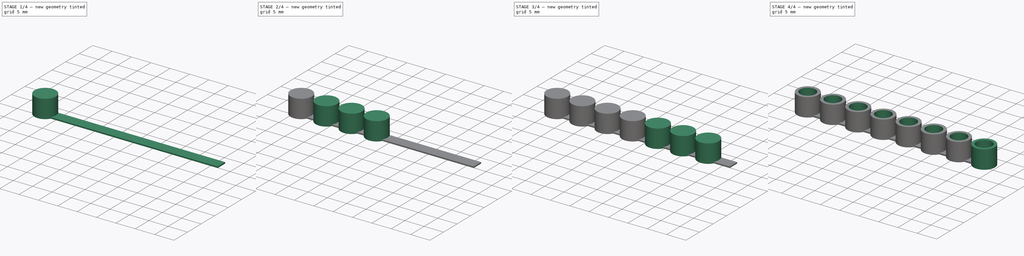
[diagram: build sequence overview — one tinted view per stage of 4, left to right]
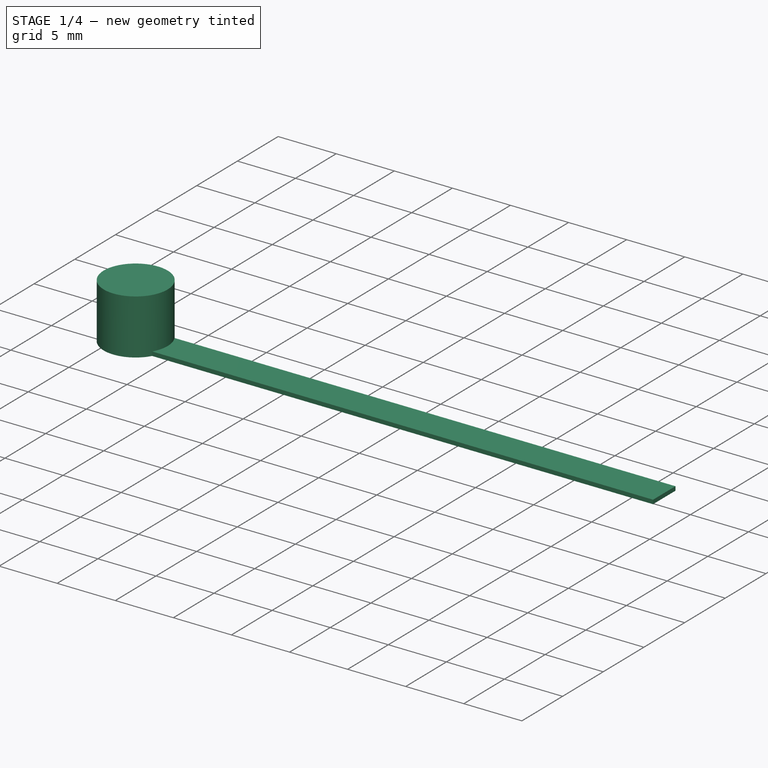
[diagram: stage 1 of 4 — iso view after this stage's code; geometry added in this stage tinted green]
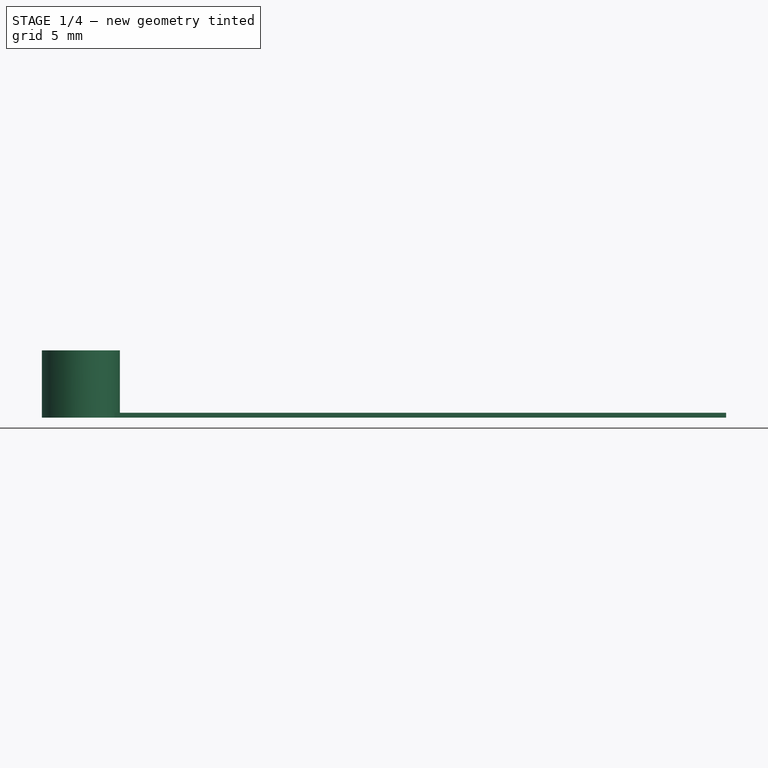
[diagram: stage 1 of 4 — front view after this stage's code; geometry added in this stage tinted green]
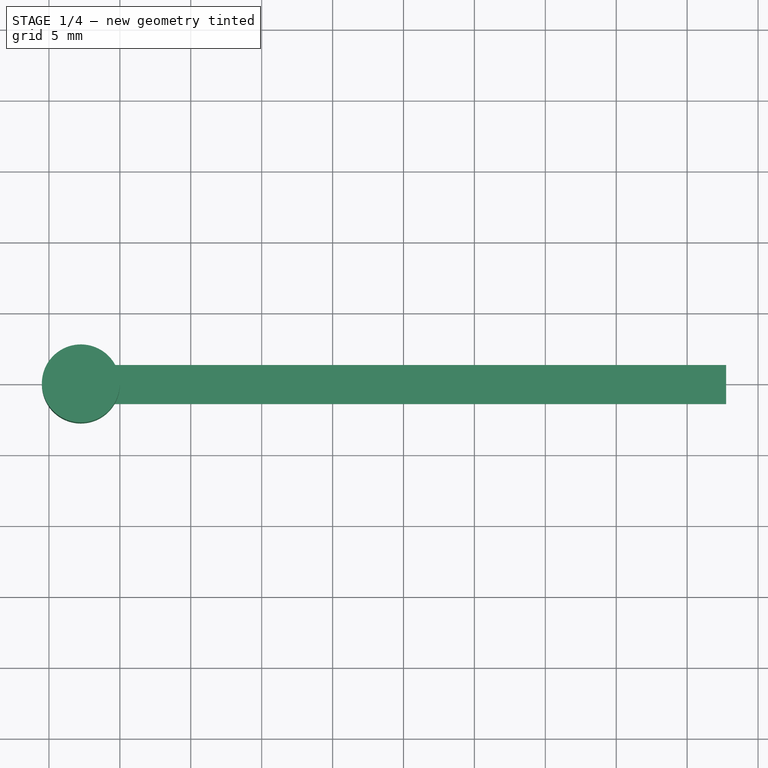
[diagram: stage 1 of 4 — top view after this stage's code; geometry added in this stage tinted green]
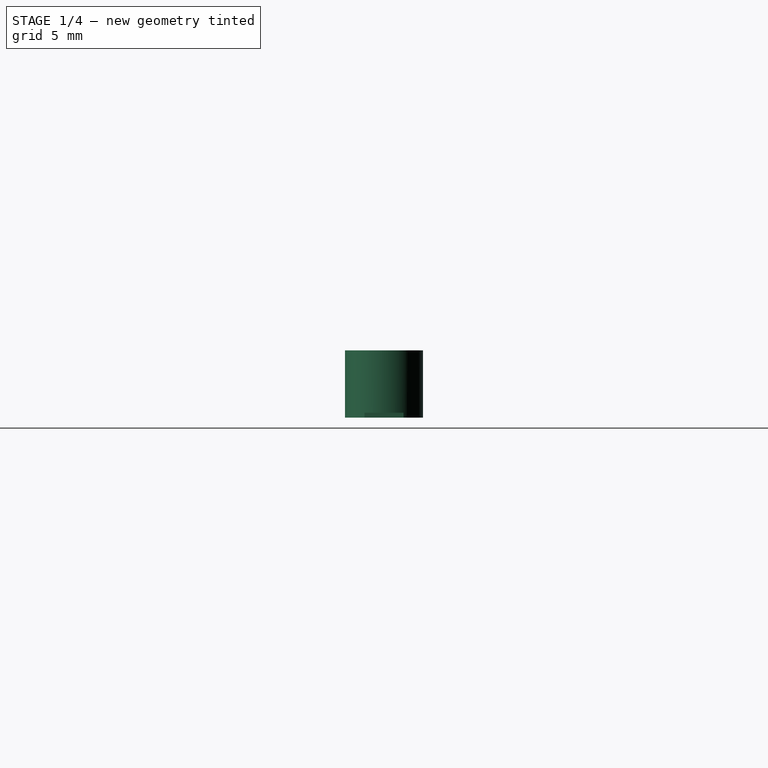
[diagram: stage 1 of 4 — right view after this stage's code; geometry added in this stage tinted green]
FCSTD DOCUMENT  (FreeCAD 0.14R2756 (Git))
Label: lcd_spacers_v0.4
License: CC-BY 3.0
LicenseURL: http://creativecommons.org/licenses/by/3.0/
objects: Sketcher::SketchObject×10, PartDesign::Pad×9, PartDesign::Pocket×1
note: 30 computed .brp shape members not serialized (recipe doc carries the construction recipe); baked Part::Feature solids carry a one-line shape summary decoded from their .brp

FEATURE [Sketcher::SketchObject] Sketch
  sketch-geometry (4):
    g0: LineSegment StartX=-22.75 StartY=1.375 StartZ=0 EndX=22.75 EndY=1.375 EndZ=0
    g1: LineSegment StartX=22.75 StartY=1.375 StartZ=0 EndX=22.75 EndY=-1.375 EndZ=0
    g2: LineSegment StartX=22.75 StartY=-1.375 StartZ=0 EndX=-22.75 EndY=-1.375 EndZ=0
    g3: LineSegment StartX=-22.75 StartY=-1.375 StartZ=0 EndX=-22.75 EndY=1.375 EndZ=0
  constraints (12):
    c: Coincident(g0,g1)
    c: Coincident(g1,g2)
    c: Coincident(g2,g3)
    c: Coincident(g3,g0)
    c: Horizontal(g0)
    c: Horizontal(g2)
    c: Vertical(g1)
    c: Vertical(g3)
    c: DistanceY(g3) = 2.75
    c: DistanceX(g0) = 45.5
    c: Symmetric(g2,g0,g-1)
    c: Symmetric(g0,g0,g-2)
FEATURE [PartDesign::Pad] Pad
  Length = 0.35
  Length2 = 100
  Sketch = -> Sketch
  Type = 0
FEATURE [Sketcher::SketchObject] Sketch001
  ExternalGeometry = -> [Pad]
  Placement = pos=(0,0,0) rot=(1,0,0;3.14159rad)
  Support = -> Pad [Face5]
  sketch-geometry (1):
    g0: Circle CenterX=-22.75 CenterY=0 CenterZ=0 NormalX=0 NormalY=0 NormalZ=1 Radius=2.75
  constraints (3):
    c: Radius(g0) = 2.75
    c: PointOnObject(g0,g-3)
    c: PointOnObject(g0,g-1)
FEATURE [PartDesign::Pad] Pad001
  Length = 4.75
  Length2 = 100
  Reversed = true
  Sketch = -> Sketch001
  Type = 0
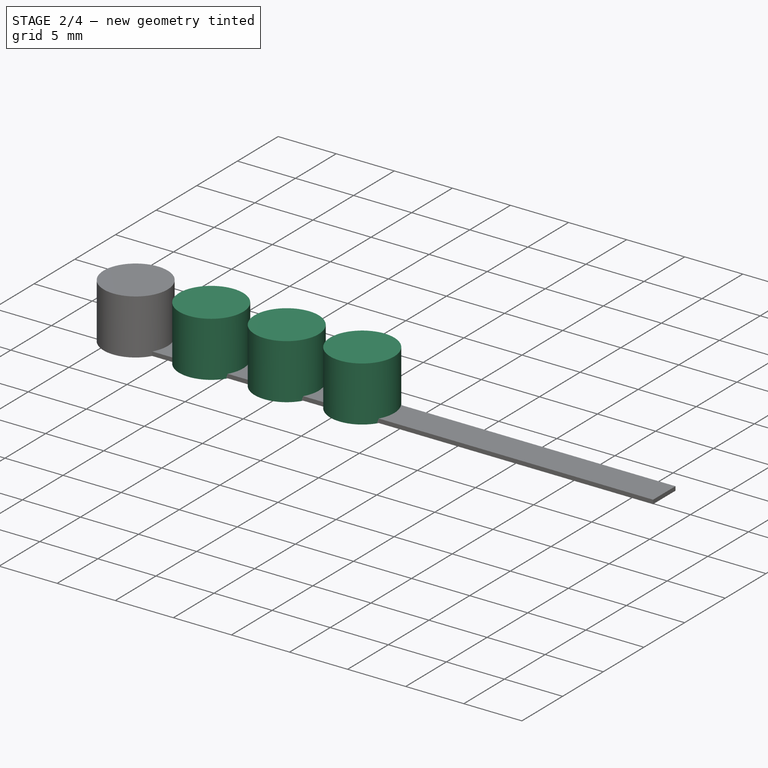
[diagram: stage 2 of 4 — iso view after this stage's code; geometry added in this stage tinted green]
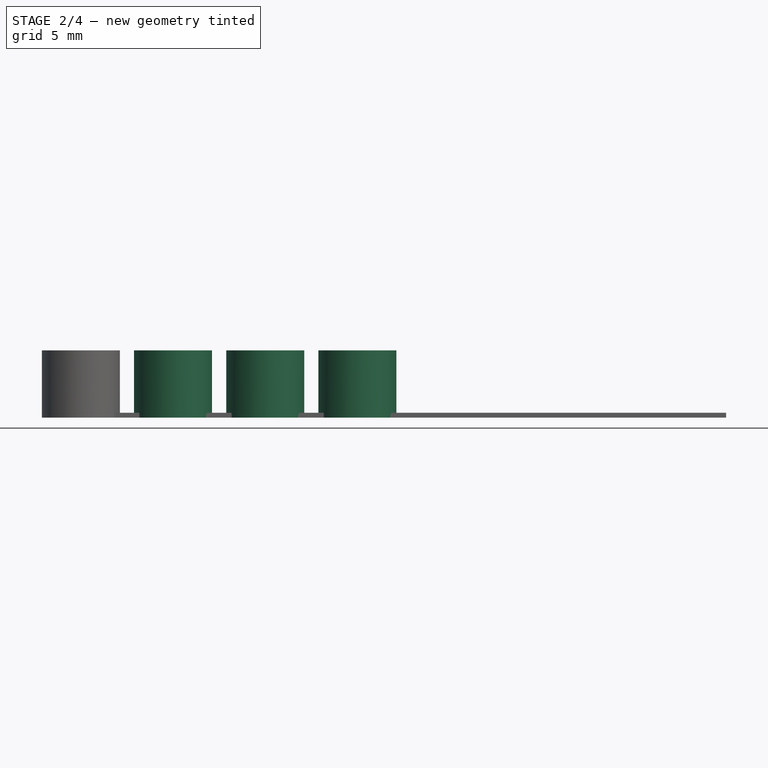
[diagram: stage 2 of 4 — front view after this stage's code; geometry added in this stage tinted green]
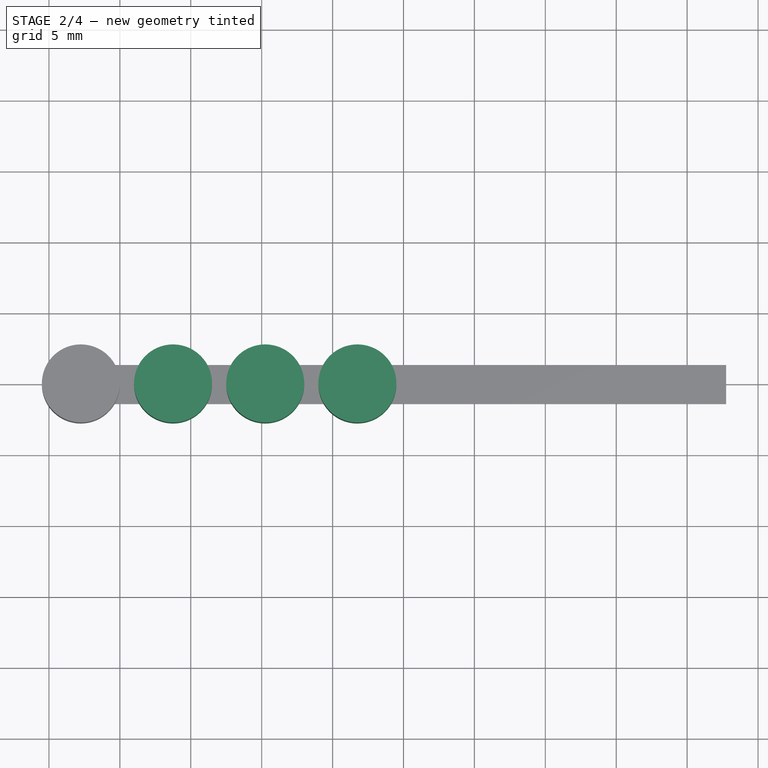
[diagram: stage 2 of 4 — top view after this stage's code; geometry added in this stage tinted green]
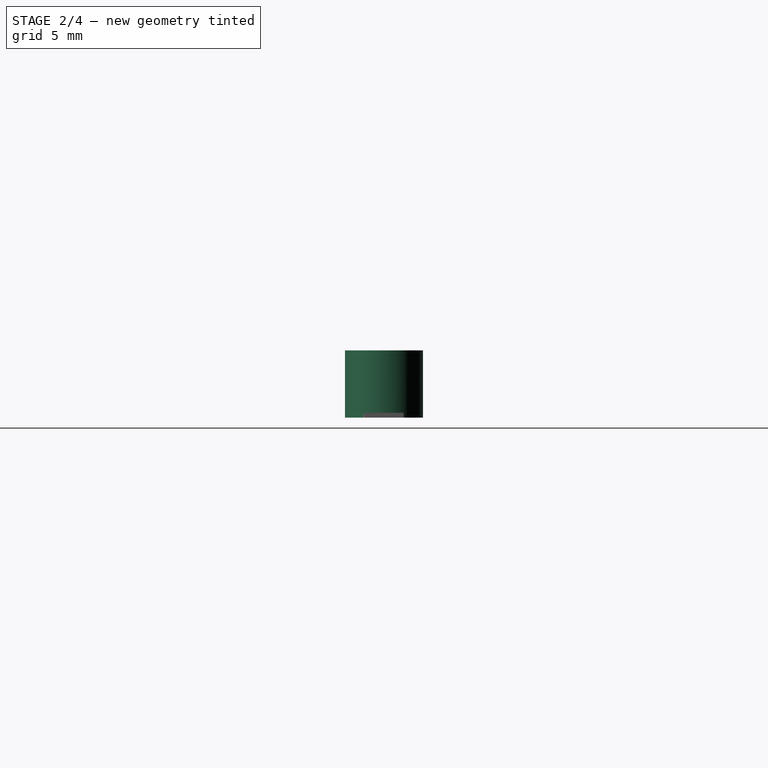
[diagram: stage 2 of 4 — right view after this stage's code; geometry added in this stage tinted green]
FEATURE [Sketcher::SketchObject] Sketch002
  ExternalGeometry = -> [Pad001]
  Placement = pos=(0,0,0) rot=(1,0,0;3.14159rad)
  Support = -> Pad001 [Face4]
  sketch-geometry (1):
    g0: Circle CenterX=-16.25 CenterY=0 CenterZ=0 NormalX=0 NormalY=0 NormalZ=1 Radius=2.75
  constraints (3):
    c: Distance(g0,g-3) = 6.5
    c: Radius(g0) = 2.75
    c: PointOnObject(g0,g-1)
FEATURE [PartDesign::Pad] Pad002
  Length = 4.75
  Length2 = 100
  Reversed = true
  Sketch = -> Sketch002
  Type = 0
FEATURE [Sketcher::SketchObject] Sketch003
  ExternalGeometry = -> [Pad002]
  Placement = pos=(0,0,0) rot=(1,0,0;3.14159rad)
  Support = -> Pad002 [Face4]
  sketch-geometry (1):
    g0: Circle CenterX=-9.75 CenterY=0 CenterZ=0 NormalX=0 NormalY=0 NormalZ=1 Radius=2.75
  constraints (3):
    c: PointOnObject(g0,g-1)
    c: Distance(g0,g-3) = 6.5
    c: Radius(g0) = 2.75
FEATURE [PartDesign::Pad] Pad003
  Length = 4.75
  Length2 = 100
  Reversed = true
  Sketch = -> Sketch003
  Type = 0
FEATURE [Sketcher::SketchObject] Sketch004
  ExternalGeometry = -> [Pad003]
  Placement = pos=(0,0,0) rot=(1,0,0;3.14159rad)
  Support = -> Pad003 [Face4]
  sketch-geometry (1):
    g0: Circle CenterX=-3.25 CenterY=0 CenterZ=0 NormalX=0 NormalY=0 NormalZ=1 Radius=2.75
  constraints (3):
    c: Radius(g0) = 2.75
    c: PointOnObject(g0,g-1)
    c: Distance(g0,g-3) = 6.5
FEATURE [PartDesign::Pad] Pad004
  Length = 4.75
  Length2 = 100
  Reversed = true
  Sketch = -> Sketch004
  Type = 0
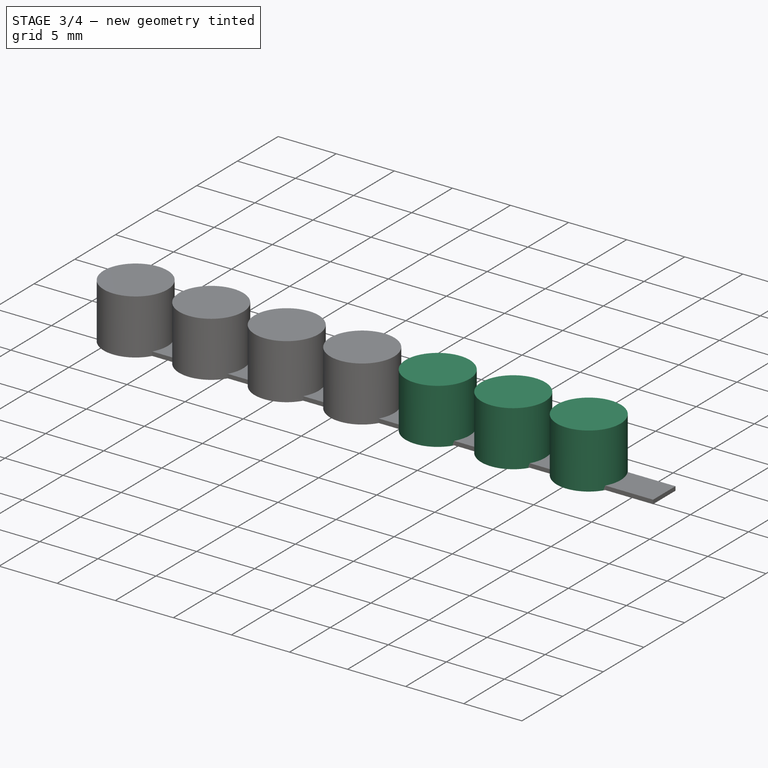
[diagram: stage 3 of 4 — iso view after this stage's code; geometry added in this stage tinted green]
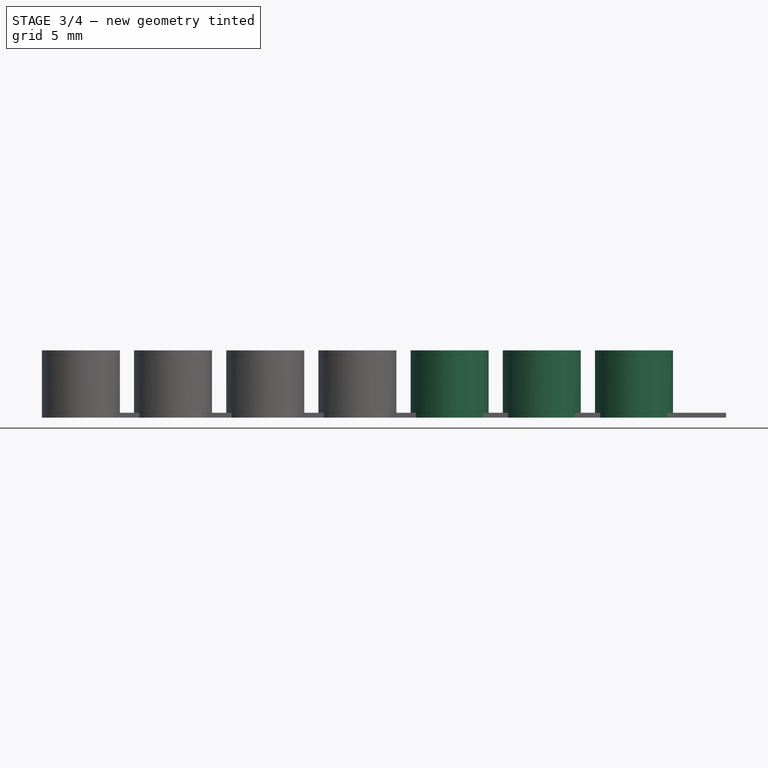
[diagram: stage 3 of 4 — front view after this stage's code; geometry added in this stage tinted green]
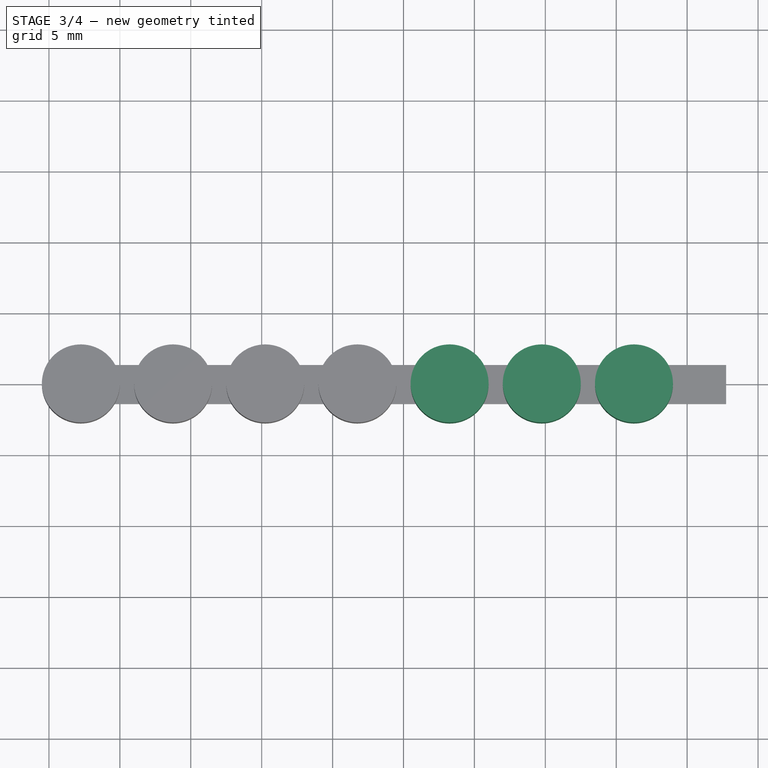
[diagram: stage 3 of 4 — top view after this stage's code; geometry added in this stage tinted green]
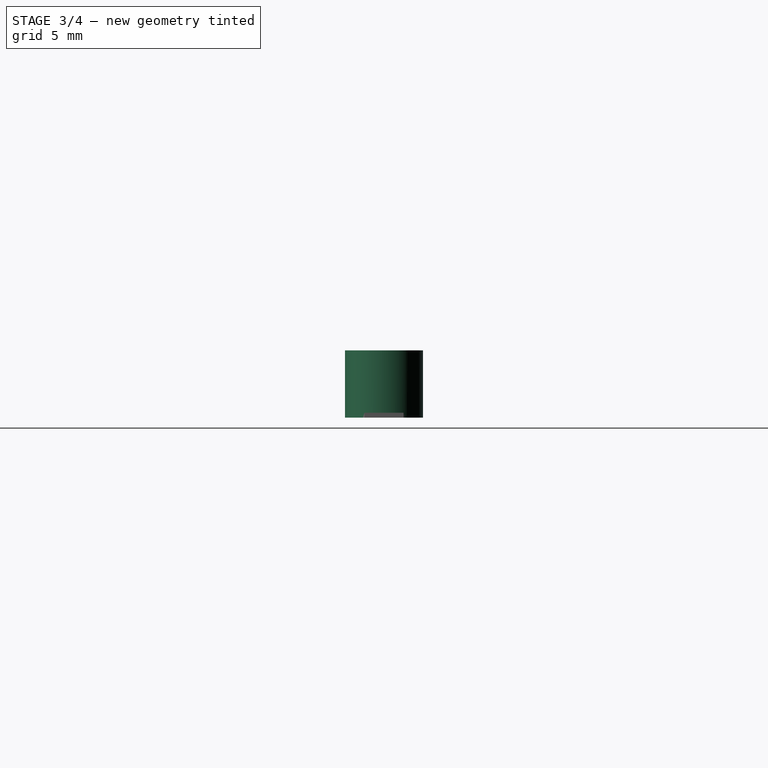
[diagram: stage 3 of 4 — right view after this stage's code; geometry added in this stage tinted green]
FEATURE [Sketcher::SketchObject] Sketch005
  ExternalGeometry = -> [Pad004]
  Placement = pos=(0,0,0) rot=(1,0,0;3.14159rad)
  Support = -> Pad004 [Face4]
  sketch-geometry (1):
    g0: Circle CenterX=3.25 CenterY=0 CenterZ=0 NormalX=0 NormalY=0 NormalZ=1 Radius=2.75
  constraints (3):
    c: PointOnObject(g0,g-1)
    c: Radius(g0) = 2.75
    c: Distance(g0,g-3) = 6.5
FEATURE [PartDesign::Pad] Pad005
  Length = 4.75
  Length2 = 100
  Reversed = true
  Sketch = -> Sketch005
  Type = 0
FEATURE [Sketcher::SketchObject] Sketch006
  ExternalGeometry = -> [Pad005]
  Placement = pos=(0,0,0) rot=(1,0,0;3.14159rad)
  Support = -> Pad005 [Face4]
  sketch-geometry (1):
    g0: Circle CenterX=9.75 CenterY=0 CenterZ=0 NormalX=0 NormalY=0 NormalZ=1 Radius=2.75
  constraints (3):
    c: PointOnObject(g0,g-1)
    c: Distance(g-3,g0) = 6.5
    c: Radius(g0) = 2.75
FEATURE [PartDesign::Pad] Pad006
  Length = 4.75
  Length2 = 100
  Reversed = true
  Sketch = -> Sketch006
  Type = 0
FEATURE [Sketcher::SketchObject] Sketch007
  ExternalGeometry = -> [Pad006]
  Placement = pos=(0,0,0) rot=(1,0,0;3.14159rad)
  Support = -> Pad006 [Face4]
  sketch-geometry (1):
    g0: Circle CenterX=16.25 CenterY=0 CenterZ=0 NormalX=0 NormalY=0 NormalZ=1 Radius=2.75
  constraints (3):
    c: PointOnObject(g0,g-1)
    c: Radius(g0) = 2.75
    c: Distance(g-3,g0) = 6.5
FEATURE [PartDesign::Pad] Pad007
  Length = 4.75
  Length2 = 100
  Reversed = true
  Sketch = -> Sketch007
  Type = 0
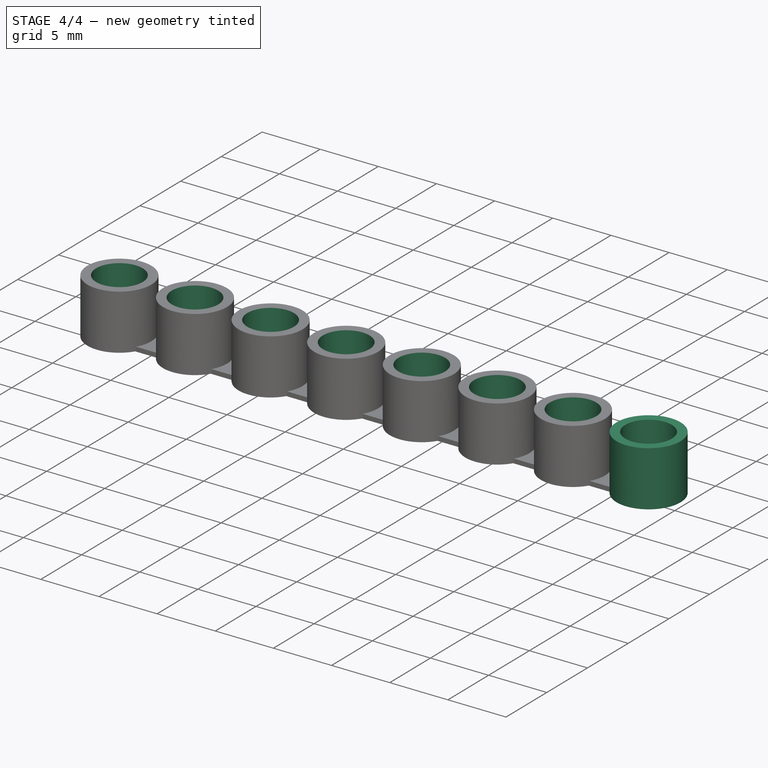
[diagram: stage 4 of 4 — iso view after this stage's code; geometry added in this stage tinted green]
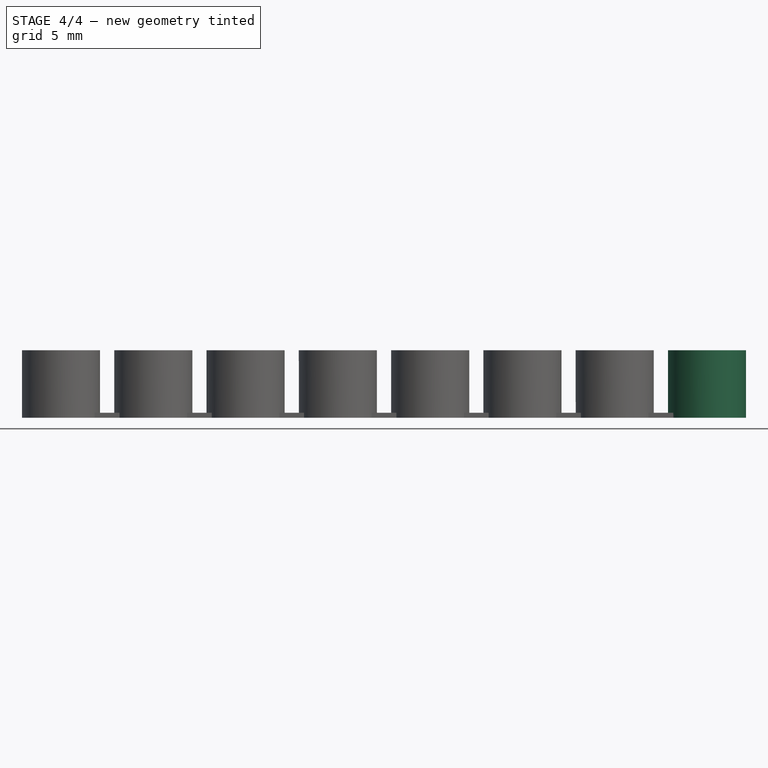
[diagram: stage 4 of 4 — front view after this stage's code; geometry added in this stage tinted green]
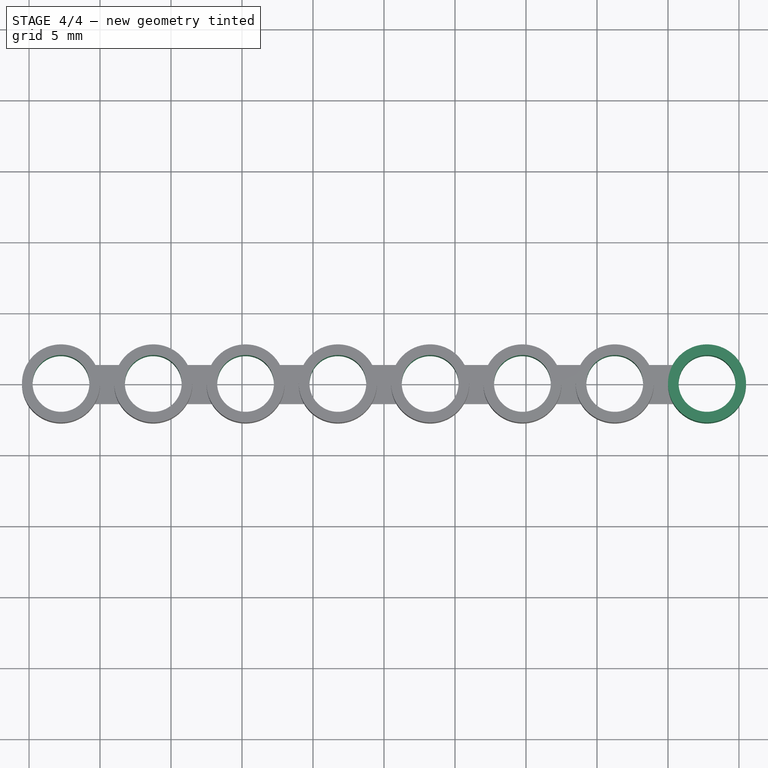
[diagram: stage 4 of 4 — top view after this stage's code; geometry added in this stage tinted green]
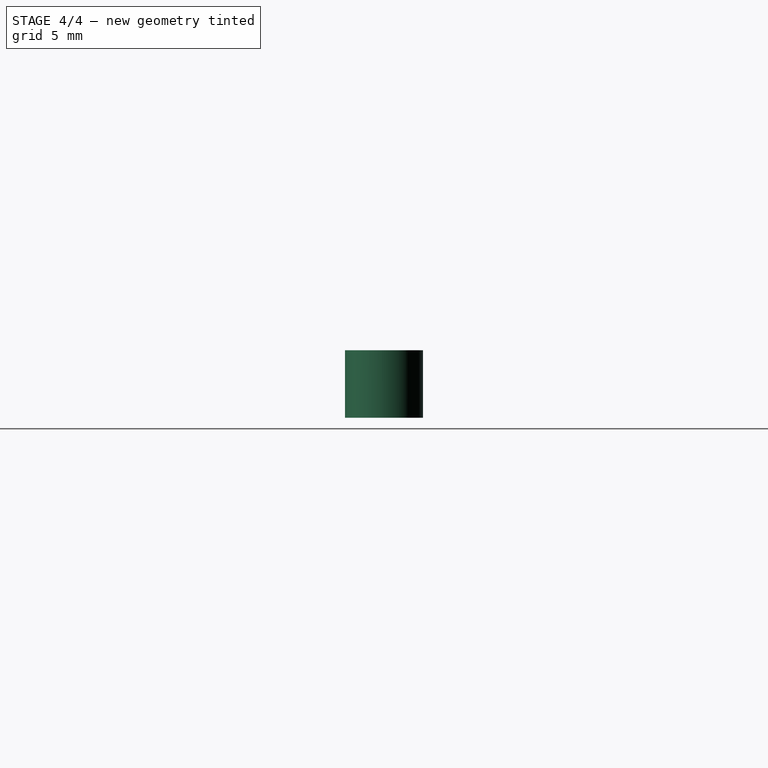
[diagram: stage 4 of 4 — right view after this stage's code; geometry added in this stage tinted green]
FEATURE [Sketcher::SketchObject] Sketch008
  ExternalGeometry = -> [Pad007]
  Placement = pos=(0,0,0) rot=(1,0,0;3.14159rad)
  Support = -> Pad007 [Face4]
  sketch-geometry (1):
    g0: Circle CenterX=22.75 CenterY=0 CenterZ=0 NormalX=0 NormalY=0 NormalZ=1 Radius=2.75
  constraints (3):
    c: PointOnObject(g0,g-1)
    c: Radius(g0) = 2.75
    c: PointOnObject(g0,g-3)
FEATURE [PartDesign::Pad] Pad008
  Length = 4.75
  Length2 = 100
  Reversed = true
  Sketch = -> Sketch008
  Type = 0
FEATURE [Sketcher::SketchObject] Sketch009
  ExternalGeometry = -> [Pad008]
  Placement = pos=(0,0,4.75) rot=(0,0,1;0rad)
  Support = -> Pad008 [Face64]
  sketch-geometry (8):
    g0: Circle CenterX=-22.75 CenterY=0 CenterZ=0 NormalX=0 NormalY=0 NormalZ=1 Radius=2
    g1: Circle CenterX=-16.25 CenterY=0 CenterZ=0 NormalX=0 NormalY=0 NormalZ=1 Radius=2
    g2: Circle CenterX=-9.75 CenterY=0 CenterZ=0 NormalX=0 NormalY=0 NormalZ=1 Radius=2
    g3: Circle CenterX=-3.25 CenterY=0 CenterZ=0 NormalX=0 NormalY=0 NormalZ=1 Radius=2
    g4: Circle CenterX=3.25 CenterY=0 CenterZ=0 NormalX=0 NormalY=0 NormalZ=1 Radius=2
    g5: Circle CenterX=9.75 CenterY=0 CenterZ=0 NormalX=0 NormalY=0 NormalZ=1 Radius=2
    g6: Circle CenterX=16.25 CenterY=0 CenterZ=0 NormalX=0 NormalY=0 NormalZ=1 Radius=2
    g7: Circle CenterX=22.75 CenterY=0 CenterZ=0 NormalX=0 NormalY=0 NormalZ=1 Radius=2
  constraints (15):
    c: Coincident(g0,g-3)
    c: Radius(g0) = 2
    c: Coincident(g1,g-4)
    c: Coincident(g2,g-5)
    c: Equal(g1,g2)
    c: Equal(g2,g0)
    c: Coincident(g3,g-6)
    c: Coincident(g4,g-7)
    c: Coincident(g6,g-9)
    c: Coincident(g7,g-10)
    c: Equal(g7,g6)
    c: Equal(g6,g5)
    c: Equal(g5,g4)
    c: Equal(g4,g3)
    c: Equal(g3,g2)
FEATURE [PartDesign::Pocket] Pocket
  Length = 6
  Sketch = -> Sketch009
  Type = 0
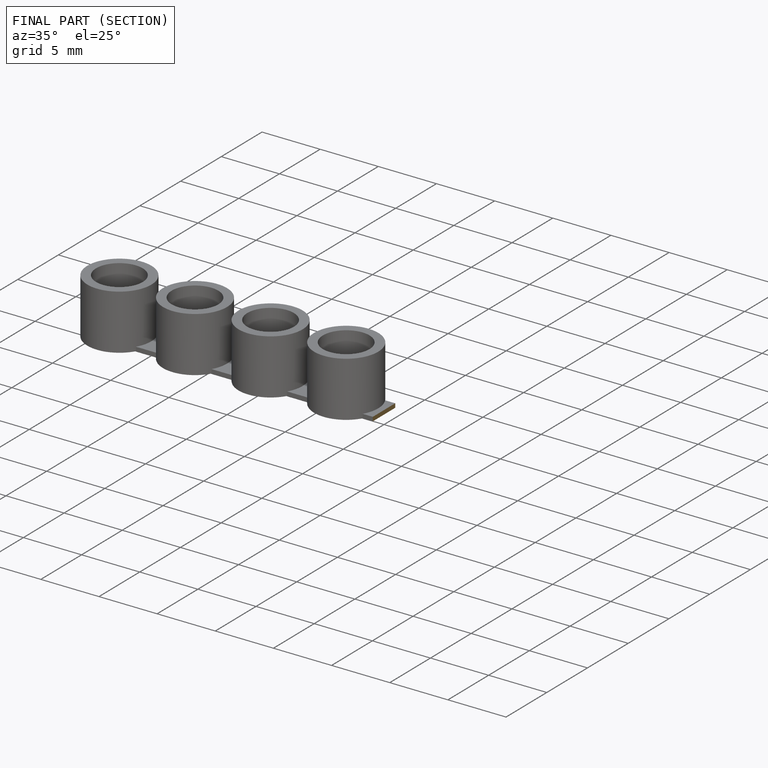
[diagram: finished part — half-section view (interior)]
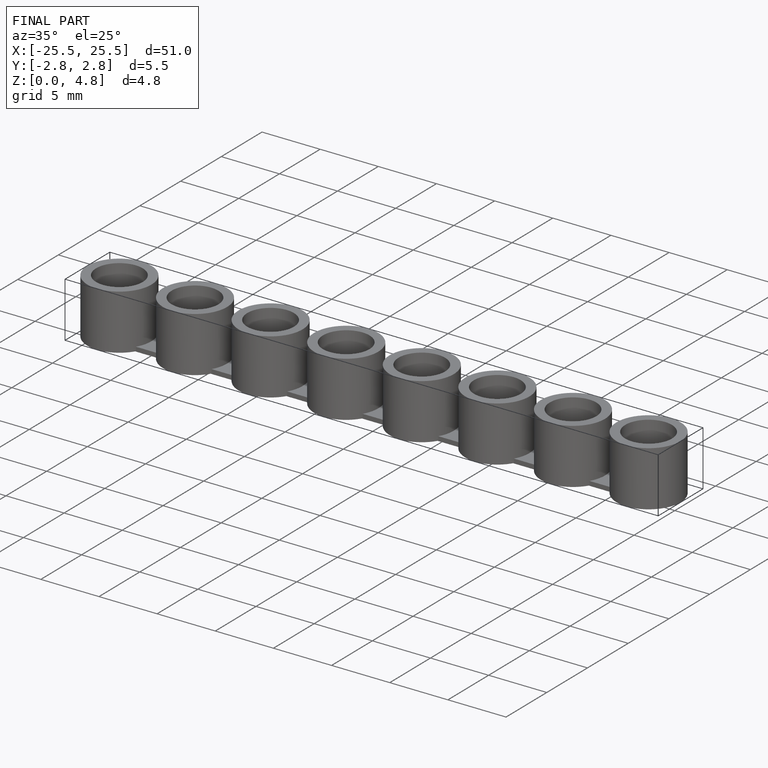
[diagram: finished part — iso view with bounding-box wireframe]
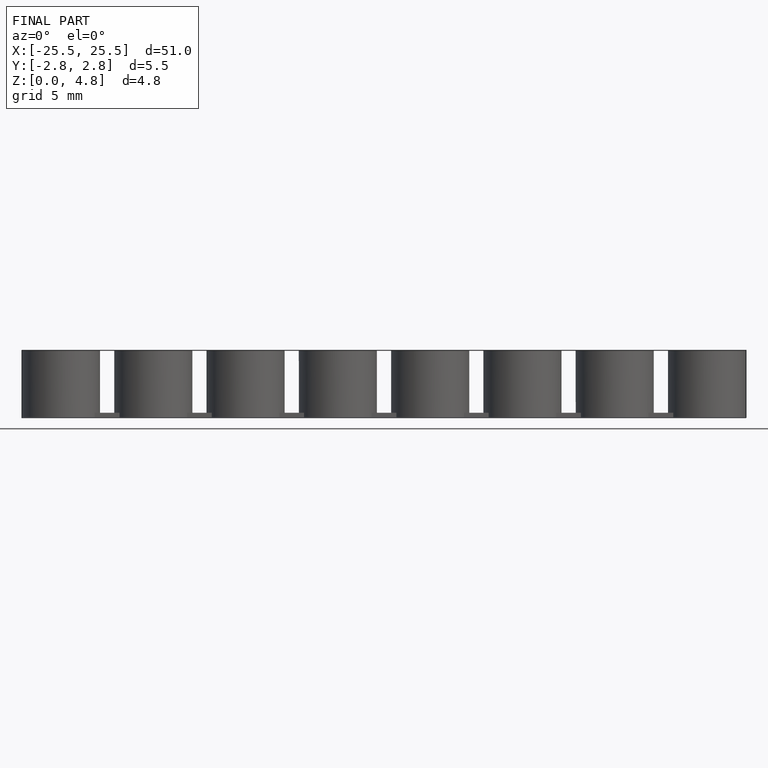
[diagram: finished part — front view with bounding-box wireframe]
